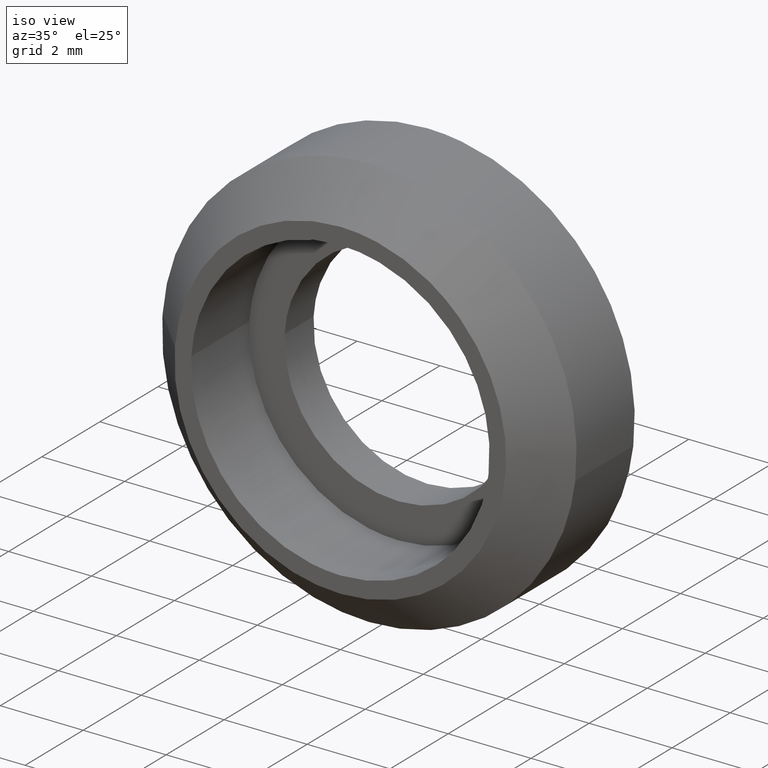
[diagram: clean part render]
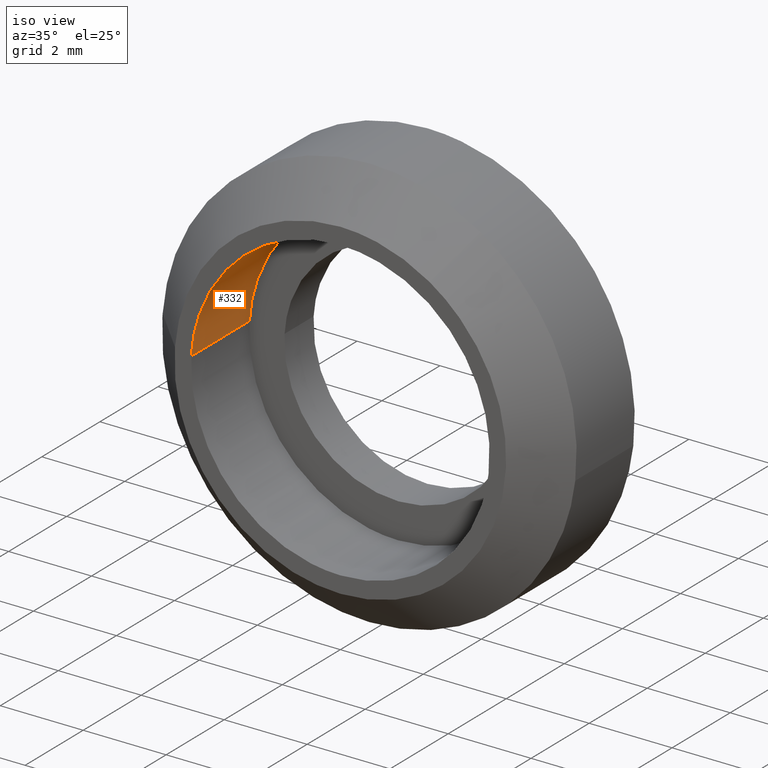
[diagram: same view with one face highlighted and labeled with its STEP entity id]
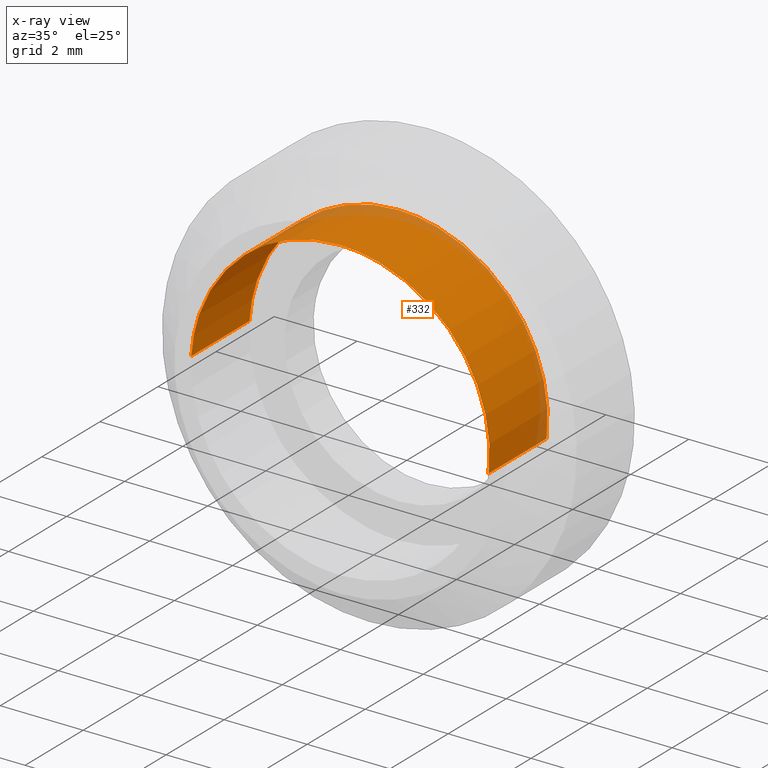
[diagram: x-ray of the same camera — body ghosted, the highlighted face saturated]
A machine part, iso view. The second image highlights one B-rep face of the part: STEP entity #332.
The next image is the same camera in x-ray: the body ghosted, the highlighted face saturated — about 10% of this face is hidden behind the body in this view.
In plain terms, the highlighted face is a freeform B-spline surface patch.
Its self-contained STEP definition (entity closure, byte-faithful):
#230=CARTESIAN_POINT('',(3.574834294909198,0.050000000000000,-0.424923244764331));
#231=CARTESIAN_POINT('',(3.586995415614981,0.050000000000000,-0.322613023096720));
#232=CARTESIAN_POINT('',(3.593285274318721,0.050000000000000,-0.219774742325485));
#233=CARTESIAN_POINT('',(3.813060016644206,0.050000000000000,3.373510531993235));
#234=CARTESIAN_POINT('',(0.219774742325486,0.050000000000000,3.593285274318720));
#235=CARTESIAN_POINT('',(-3.373510531993235,0.050000000000000,3.813060016644206));
#236=CARTESIAN_POINT('',(-3.593285274318720,0.050000000000000,0.219774742325485));
#237=CARTESIAN_POINT('',(3.574834294909198,-2.051250000000001,-0.424923244764331));
#238=CARTESIAN_POINT('',(3.586995415614981,-2.051250000000000,-0.322613023096720));
#239=CARTESIAN_POINT('',(3.593285274318721,-2.051250000000000,-0.219774742325485));
#240=CARTESIAN_POINT('',(3.813060016644206,-2.051250000000001,3.373510531993235));
#241=CARTESIAN_POINT('',(0.219774742325486,-2.051250000000000,3.593285274318720));
#242=CARTESIAN_POINT('',(-3.373510531993235,-2.051250000000001,3.813060016644206));
#243=CARTESIAN_POINT('',(-3.593285274318720,-2.051250000000000,0.219774742325485));
#251=(BOUNDED_SURFACE()B_SPLINE_SURFACE(2,1,((#230,#237),(#231,#238),(#232,#239),(#233,#240),(#234,#241),(#235,#242),(#236,#243)),.UNSPECIFIED.,.F.,.F.,.U.)B_SPLINE_SURFACE_WITH_KNOTS((3,2,2,3),(2,2),(0.0,0.238587011926903,6.203262310099472,12.167937608272039),(0.0,2.101250000000000),.UNSPECIFIED.)GEOMETRIC_REPRESENTATION_ITEM()RATIONAL_B_SPLINE_SURFACE(((0.977505800795127,0.977505800795127),(0.988284271247462,0.988284271247462),(1.0,1.0),(0.707106781186548,0.707106781186548),(1.0,1.0),(0.707106781186548,0.707106781186548),(1.0,1.0)))REPRESENTATION_ITEM('')SURFACE());
#252=CARTESIAN_POINT('',(3.574834407510444,-3.545736E-015,-0.424922297459830));
#253=VERTEX_POINT('',#252);
#254=CARTESIAN_POINT('',(4.898425E-016,0.0,3.600000000000000));
#255=VERTEX_POINT('',#254);
#256=CARTESIAN_POINT('',(3.574834407510443,-3.545736E-015,-0.424922297459830));
#257=CARTESIAN_POINT('',(3.600000000000000,0.0,-0.213205873427639));
#258=CARTESIAN_POINT('',(3.600000000000001,0.0,0.0));
#259=CARTESIAN_POINT('',(3.600000000000000,0.0,3.600000000000000));
#260=CARTESIAN_POINT('',(4.898425E-016,0.0,3.600000000000000));
#268=(BOUNDED_CURVE()B_SPLINE_CURVE(2,(#256,#257,#258,#259,#260),.UNSPECIFIED.,.F.,.U.)B_SPLINE_CURVE_WITH_KNOTS((3,2,3),(0.229562563084858,0.250000000000000,0.500000000000000),.UNSPECIFIED.)CURVE()GEOMETRIC_REPRESENTATION_ITEM()RATIONAL_B_SPLINE_CURVE((0.956026929747286,0.976056053270509,1.0,0.707106781186547,1.0))REPRESENTATION_ITEM(''));
#269=EDGE_CURVE('',#253,#255,#268,.T.);
#270=ORIENTED_EDGE('',*,*,#269,.F.);
#271=CARTESIAN_POINT('',(3.574834406155133,-2.0,-0.424922308861975));
#272=VERTEX_POINT('',#271);
#273=CARTESIAN_POINT('',(3.574834407510444,-3.545736E-015,-0.424922297459830));
#274=CARTESIAN_POINT('',(3.574834406155133,-2.0,-0.424922308861975));
#275=QUASI_UNIFORM_CURVE('',1,(#273,#274),.UNSPECIFIED.,.F.,.U.);
#276=EDGE_CURVE('',#253,#272,#275,.T.);
#277=ORIENTED_EDGE('',*,*,#276,.T.);
#278=CARTESIAN_POINT('',(4.898425E-016,-2.0,3.600000000000000));
#279=VERTEX_POINT('',#278);
#280=CARTESIAN_POINT('',(3.574834406155132,-2.000000000000000,-0.424922308861975));
#281=CARTESIAN_POINT('',(3.600000000000001,-2.000000000000000,-0.213205884950325));
#282=CARTESIAN_POINT('',(3.600000000000001,-2.0,0.0));
#283=CARTESIAN_POINT('',(3.600000000000000,-2.0,3.600000000000000));
#284=CARTESIAN_POINT('',(4.898425E-016,-2.0,3.600000000000000));
#292=(BOUNDED_CURVE()B_SPLINE_CURVE(2,(#280,#281,#282,#283,#284),.UNSPECIFIED.,.F.,.U.)B_SPLINE_CURVE_WITH_KNOTS((3,2,3),(0.229562562006767,0.250000000000000,0.500000000000000),.UNSPECIFIED.)CURVE()GEOMETRIC_REPRESENTATION_ITEM()RATIONAL_B_SPLINE_CURVE((0.956026927634180,0.976056052007446,1.0,0.707106781186547,1.0))REPRESENTATION_ITEM(''));
#293=EDGE_CURVE('',#272,#279,#292,.T.);
#294=ORIENTED_EDGE('',*,*,#293,.T.);
#295=CARTESIAN_POINT('',(-3.593285493808216,-2.0,0.219771153645120));
#296=VERTEX_POINT('',#295);
#297=CARTESIAN_POINT('',(4.898425E-016,-2.0,3.600000000000000));
#298=CARTESIAN_POINT('',(-3.386545229384042,-2.000000000000000,3.600000000000000));
#299=CARTESIAN_POINT('',(-3.593285493808216,-1.999999999999999,0.219771153645120));
#307=(BOUNDED_CURVE()B_SPLINE_CURVE(2,(#297,#298,#299),.UNSPECIFIED.,.F.,.U.)B_SPLINE_CURVE_WITH_KNOTS((3,3),(0.500000000000000,0.739333134567656),.UNSPECIFIED.)CURVE()GEOMETRIC_REPRESENTATION_ITEM()RATIONAL_B_SPLINE_CURVE((1.0,0.719603791391064,0.976072411000232))REPRESENTATION_ITEM(''));
#308=EDGE_CURVE('',#279,#296,#307,.T.);
#309=ORIENTED_EDGE('',*,*,#308,.T.);
#310=CARTESIAN_POINT('',(-3.593285496484431,-7.393391E-015,0.219771109887959));
#311=VERTEX_POINT('',#310);
#312=CARTESIAN_POINT('',(-3.593285496484431,-7.393391E-015,0.219771109887959));
#313=CARTESIAN_POINT('',(-3.593285493808216,-2.0,0.219771153645120));
#314=QUASI_UNIFORM_CURVE('',1,(#312,#313),.UNSPECIFIED.,.F.,.U.);
#315=EDGE_CURVE('',#311,#296,#314,.T.);
#316=ORIENTED_EDGE('',*,*,#315,.F.);
#317=CARTESIAN_POINT('',(4.898425E-016,0.0,3.600000000000000));
#318=CARTESIAN_POINT('',(-3.386545270700687,0.0,3.600000000000001));
#319=CARTESIAN_POINT('',(-3.593285496484431,-7.393391E-015,0.219771109887959));
#327=(BOUNDED_CURVE()B_SPLINE_CURVE(2,(#317,#318,#319),.UNSPECIFIED.,.F.,.U.)B_SPLINE_CURVE_WITH_KNOTS((3,3),(0.500000000000000,0.739333136668842),.UNSPECIFIED.)CURVE()GEOMETRIC_REPRESENTATION_ITEM()RATIONAL_B_SPLINE_CURVE((1.0,0.719603788929372,0.976072415503480))REPRESENTATION_ITEM(''));
#328=EDGE_CURVE('',#255,#311,#327,.T.);
#329=ORIENTED_EDGE('',*,*,#328,.F.);
#330=EDGE_LOOP('',(#270,#277,#294,#309,#316,#329));
#331=FACE_OUTER_BOUND('',#330,.T.);
#332=ADVANCED_FACE('',(#331),#251,.F.);